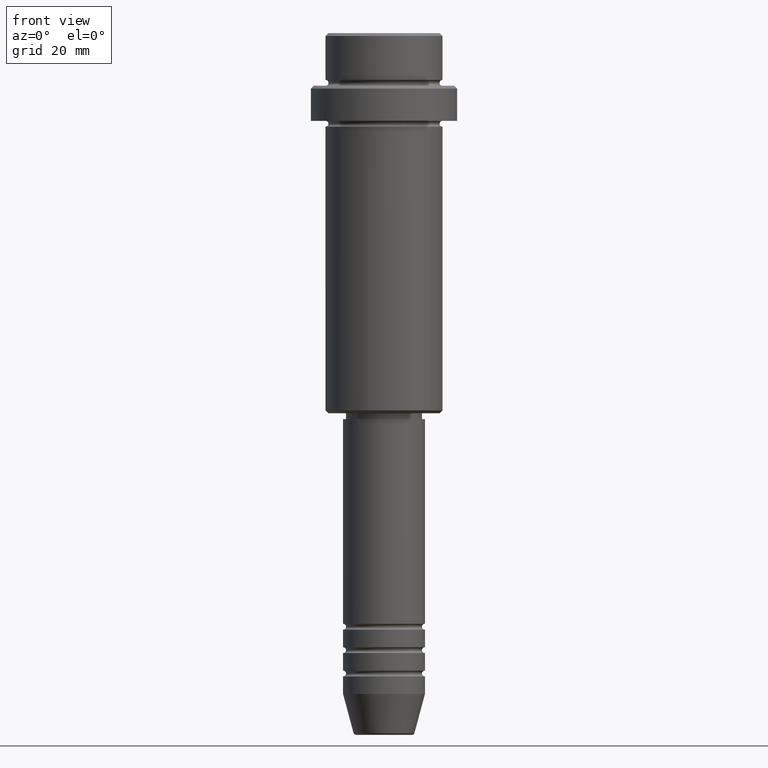
[diagram: clean part render]
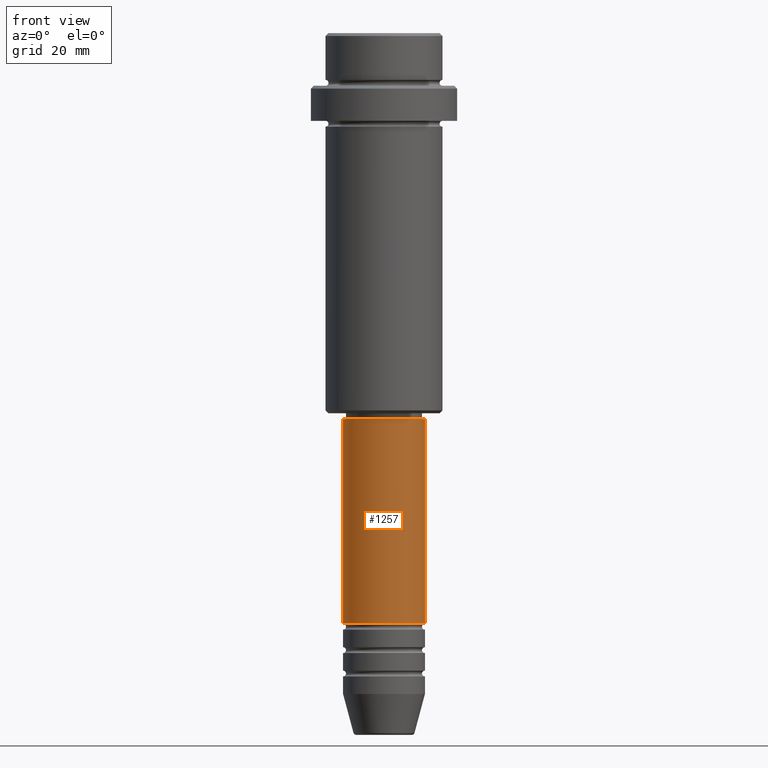
[diagram: same view with one face highlighted and labeled with its STEP entity id]
A machine part, front view. The second image highlights one B-rep face of the part: STEP entity #1257.
In plain terms, the highlighted cylindrical surface (partial cylindrical patch) has radius 7 mm, axis along (-0, -0, 1).
Its self-contained STEP definition (entity closure, byte-faithful):
#2 = DIRECTION ( 'NONE',  ( -0.000000000000000000, -0.000000000000000000, 1.000000000000000000 ) ) ;
#4 = CARTESIAN_POINT ( 'NONE',  ( 0.000000000000000000, 0.000000000000000000, -100.9999999999999005 ) ) ;
#29 = EDGE_LOOP ( 'NONE', ( #550, #92, #213, #281 ) ) ;
#69 = LINE ( 'NONE', #497, #600 ) ;
#91 = CARTESIAN_POINT ( 'NONE',  ( -7.000000000000000000, 8.572527594031473190E-16, -100.9999999999999005 ) ) ;
#92 = ORIENTED_EDGE ( 'NONE', *, *, #850, .T. ) ;
#150 = CARTESIAN_POINT ( 'NONE',  ( 7.000000000000000000, 0.000000000000000000, -100.9999999999999005 ) ) ;
#154 = EDGE_CURVE ( 'NONE', #848, #1185, #740, .T. ) ;
#213 = ORIENTED_EDGE ( 'NONE', *, *, #1120, .T. ) ;
#224 = CARTESIAN_POINT ( 'NONE',  ( 0.000000000000000000, 0.000000000000000000, 0.000000000000000000 ) ) ;
#230 = LINE ( 'NONE', #646, #911 ) ;
#248 = AXIS2_PLACEMENT_3D ( 'NONE', #4, #572, #1040 ) ;
#281 = ORIENTED_EDGE ( 'NONE', *, *, #154, .F. ) ;
#301 = CARTESIAN_POINT ( 'NONE',  ( 0.000000000000000000, 0.000000000000000000, -66.00000000000000000 ) ) ;
#326 = DIRECTION ( 'NONE',  ( 1.000000000000000000, 0.000000000000000000, 0.000000000000000000 ) ) ;
#330 = AXIS2_PLACEMENT_3D ( 'NONE', #301, #637, #1261 ) ;
#333 = FACE_OUTER_BOUND ( 'NONE', #29, .T. ) ;
#379 = CIRCLE ( 'NONE', #248, 7.000000000000000000 ) ;
#435 = CARTESIAN_POINT ( 'NONE',  ( 7.000000000000000000, 0.000000000000000000, -66.00000000000000000 ) ) ;
#444 = CYLINDRICAL_SURFACE ( 'NONE', #465, 7.000000000000000000 ) ;
#465 = AXIS2_PLACEMENT_3D ( 'NONE', #224, #1399, #326 ) ;
#497 = CARTESIAN_POINT ( 'NONE',  ( 7.000000000000000000, 0.000000000000000000, 0.000000000000000000 ) ) ;
#516 = DIRECTION ( 'NONE',  ( -0.000000000000000000, -0.000000000000000000, 1.000000000000000000 ) ) ;
#541 = VERTEX_POINT ( 'NONE', #150 ) ;
#550 = ORIENTED_EDGE ( 'NONE', *, *, #1216, .F. ) ;
#572 = DIRECTION ( 'NONE',  ( -0.000000000000000000, -0.000000000000000000, 1.000000000000000000 ) ) ;
#600 = VECTOR ( 'NONE', #2, 1000.000000000000000 ) ;
#637 = DIRECTION ( 'NONE',  ( -0.000000000000000000, -0.000000000000000000, 1.000000000000000000 ) ) ;
#646 = CARTESIAN_POINT ( 'NONE',  ( -7.000000000000000000, 8.572527594031473190E-16, 0.000000000000000000 ) ) ;
#740 = CIRCLE ( 'NONE', #330, 7.000000000000000000 ) ;
#821 = VERTEX_POINT ( 'NONE', #91 ) ;
#848 = VERTEX_POINT ( 'NONE', #996 ) ;
#850 = EDGE_CURVE ( 'NONE', #821, #541, #379, .T. ) ;
#911 = VECTOR ( 'NONE', #516, 1000.000000000000000 ) ;
#996 = CARTESIAN_POINT ( 'NONE',  ( -7.000000000000000000, 8.572527594031473190E-16, -66.00000000000000000 ) ) ;
#1040 = DIRECTION ( 'NONE',  ( 1.000000000000000000, 0.000000000000000000, 0.000000000000000000 ) ) ;
#1120 = EDGE_CURVE ( 'NONE', #541, #1185, #69, .T. ) ;
#1185 = VERTEX_POINT ( 'NONE', #435 ) ;
#1216 = EDGE_CURVE ( 'NONE', #821, #848, #230, .T. ) ;
#1257 = ADVANCED_FACE ( 'NONE', ( #333 ), #444, .T. ) ;
#1261 = DIRECTION ( 'NONE',  ( 1.000000000000000000, 0.000000000000000000, 0.000000000000000000 ) ) ;
#1399 = DIRECTION ( 'NONE',  ( -0.000000000000000000, -0.000000000000000000, 1.000000000000000000 ) ) ;